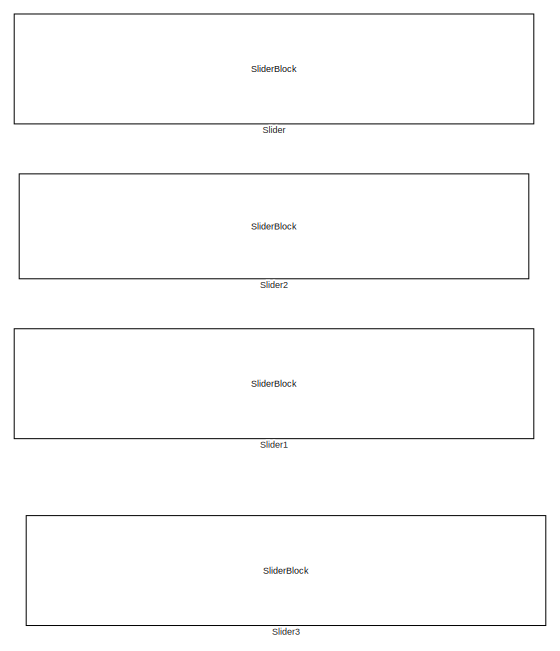
[diagram: root canvas - part 1/2, middle left region]
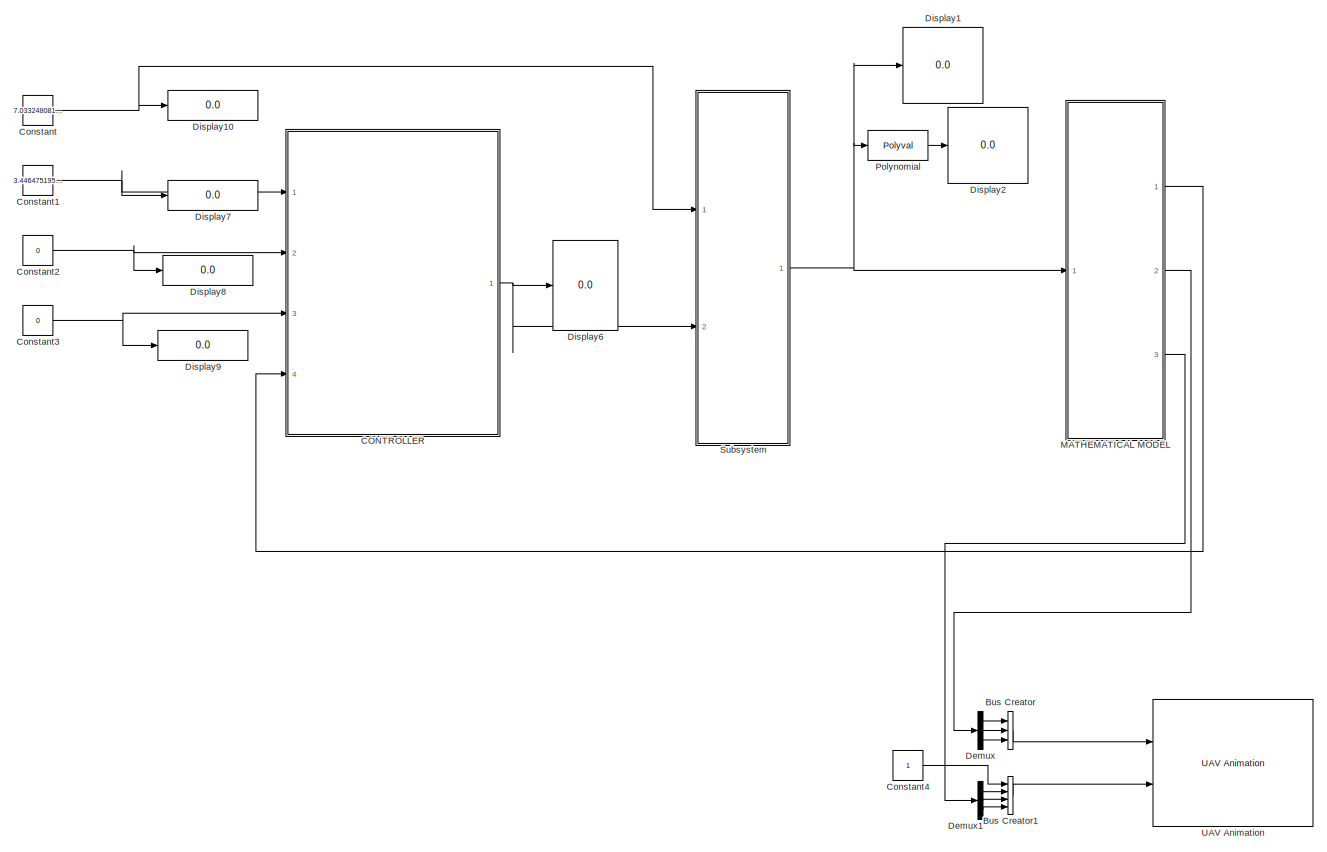
[diagram: root canvas - part 2/2, right side, full height]
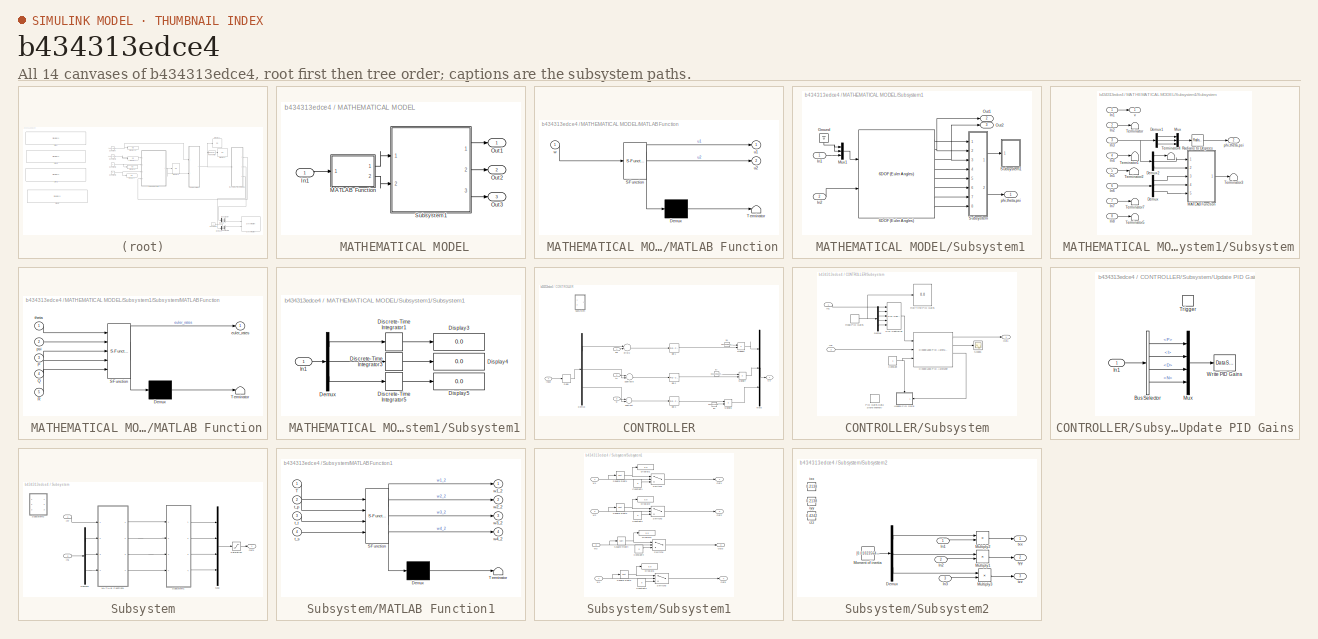
[diagram: thumbnail index - all 14 canvases of the model, root first then tree order]
MODEL slx_b434313edce4
KIND model
CONFIG AbsTol = auto
CONFIG EnableMultiTasking = off
CONFIG FixedStep = auto
CONFIG MaxStep = auto
CONFIG MinStep = auto
CONFIG RelTol = 1e-3
CONFIG SampleTimeConstraint = Unconstrained
CONFIG Solver = VariableStepAuto
CONFIG SolverName = VariableStepAuto
CONFIG StartTime = 0.0
CONFIG StopTime = inf
BLOCK [SubSystem]  MATHEMATICAL MODEL
  Ports = [1, 3]
  RequestExecContextInheritance = off
BLOCK [Inport]  MATHEMATICAL MODEL/In1
  IconDisplay = Port number
BLOCK [SubSystem]  MATHEMATICAL MODEL/MATLAB Function
  ErrorFcn = Stateflow.Translate.translate
  PermitHierarchicalResolution = ExplicitOnly
  Ports = [1, 2]
  RequestExecContextInheritance = off
  SFBlockType = MATLAB Function
  TreatAsAtomicUnit = on
BLOCK [Demux]  MATHEMATICAL MODEL/MATLAB Function/ Demux 
  Outputs = 1
  Ports = [1, 1]
BLOCK [S-Function]  MATHEMATICAL MODEL/MATLAB Function/ SFunction 
  EnableBusSupport = on
  FunctionName = sf_sfun
  PortCounts = [1 3]
  Ports = [1, 3]
  SFcnIsStateOwnerBlock = off
  SFunctionDeploymentMode = off
  Tag = Stateflow S-Function final_hover_final 3
BLOCK [Terminator]  MATHEMATICAL MODEL/MATLAB Function/ Terminator 
BLOCK [Outport]  MATHEMATICAL MODEL/MATLAB Function/u1
  IconDisplay = Port number
BLOCK [Outport]  MATHEMATICAL MODEL/MATLAB Function/u2
  IconDisplay = Port number
  Port = 2
BLOCK [Inport]  MATHEMATICAL MODEL/MATLAB Function/w
  IconDisplay = Port number
BLOCK [Outport]  MATHEMATICAL MODEL/Out1
  IconDisplay = Port number
BLOCK [Outport]  MATHEMATICAL MODEL/Out2
  IconDisplay = Port number
  Port = 2
BLOCK [Outport]  MATHEMATICAL MODEL/Out3
  IconDisplay = Port number
  Port = 3
BLOCK [SubSystem]  MATHEMATICAL MODEL/Subsystem1
  Ports = [2, 3]
  RequestExecContextInheritance = off
BLOCK [Reference]  MATHEMATICAL MODEL/Subsystem1/6DOF (Euler Angles)  REF=shared6dof/6DOF (Euler Angles)
  Ports = [2, 8]
  SourceBlock = shared6dof/6DOF (Euler Angles)
  SourceProductBaseCode = AE
  SourceProductName = Aerospace Blockset
  SourceType = 6DOF EoM (Body Axis)
BLOCK [Ground]  MATHEMATICAL MODEL/Subsystem1/Ground
BLOCK [Inport]  MATHEMATICAL MODEL/Subsystem1/In1
  IconDisplay = Port number
BLOCK [Inport]  MATHEMATICAL MODEL/Subsystem1/In2
  IconDisplay = Port number
  Port = 2
BLOCK [Mux]  MATHEMATICAL MODEL/Subsystem1/Mux1
  DisplayOption = bar
  Inputs = 3
  Ports = [3, 1]
BLOCK [Outport]  MATHEMATICAL MODEL/Subsystem1/Out1
  IconDisplay = Port number
  Port = 2
BLOCK [Outport]  MATHEMATICAL MODEL/Subsystem1/Out2
  IconDisplay = Port number
  Port = 3
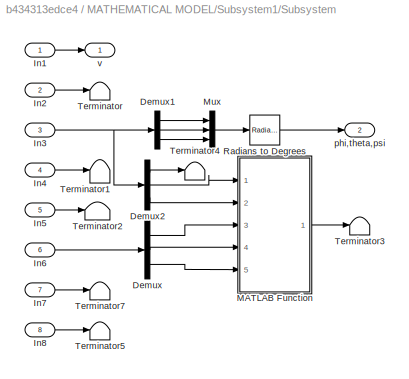
BLOCK [SubSystem]  MATHEMATICAL MODEL/Subsystem1/Subsystem
  Ports = [8, 2]
  RequestExecContextInheritance = off
BLOCK [Demux]  MATHEMATICAL MODEL/Subsystem1/Subsystem/Demux
  DisplayOption = bar
  Outputs = 3
  Ports = [1, 3]
BLOCK [Demux]  MATHEMATICAL MODEL/Subsystem1/Subsystem/Demux1
  DisplayOption = bar
  Outputs = 3
  Ports = [1, 3]
BLOCK [Demux]  MATHEMATICAL MODEL/Subsystem1/Subsystem/Demux2
  DisplayOption = bar
  Outputs = 3
  Ports = [1, 3]
BLOCK [Inport]  MATHEMATICAL MODEL/Subsystem1/Subsystem/In1
  IconDisplay = Port number
BLOCK [Inport]  MATHEMATICAL MODEL/Subsystem1/Subsystem/In2
  IconDisplay = Port number
  Port = 2
BLOCK [Inport]  MATHEMATICAL MODEL/Subsystem1/Subsystem/In3
  IconDisplay = Port number
  Port = 3
BLOCK [Inport]  MATHEMATICAL MODEL/Subsystem1/Subsystem/In4
  IconDisplay = Port number
  Port = 4
BLOCK [Inport]  MATHEMATICAL MODEL/Subsystem1/Subsystem/In5
  IconDisplay = Port number
  Port = 5
BLOCK [Inport]  MATHEMATICAL MODEL/Subsystem1/Subsystem/In6
  IconDisplay = Port number
  Port = 6
BLOCK [Inport]  MATHEMATICAL MODEL/Subsystem1/Subsystem/In7
  IconDisplay = Port number
  Port = 7
BLOCK [Inport]  MATHEMATICAL MODEL/Subsystem1/Subsystem/In8
  IconDisplay = Port number
  Port = 8
BLOCK [SubSystem]  MATHEMATICAL MODEL/Subsystem1/Subsystem/MATLAB Function
  ErrorFcn = Stateflow.Translate.translate
  PermitHierarchicalResolution = ExplicitOnly
  Ports = [5, 1]
  RequestExecContextInheritance = off
  SFBlockType = MATLAB Function
  TreatAsAtomicUnit = on
BLOCK [Demux]  MATHEMATICAL MODEL/Subsystem1/Subsystem/MATLAB Function/ Demux 
  Outputs = 1
  Ports = [1, 1]
BLOCK [S-Function]  MATHEMATICAL MODEL/Subsystem1/Subsystem/MATLAB Function/ SFunction 
  EnableBusSupport = on
  FunctionName = sf_sfun
  PortCounts = [5 2]
  Ports = [5, 2]
  SFcnIsStateOwnerBlock = off
  SFunctionDeploymentMode = off
  Tag = Stateflow S-Function final_hover_final 1
BLOCK [Terminator]  MATHEMATICAL MODEL/Subsystem1/Subsystem/MATLAB Function/ Terminator 
BLOCK [Inport]  MATHEMATICAL MODEL/Subsystem1/Subsystem/MATLAB Function/P
  IconDisplay = Port number
  Port = 3
BLOCK [Inport]  MATHEMATICAL MODEL/Subsystem1/Subsystem/MATLAB Function/Q
  IconDisplay = Port number
  Port = 4
BLOCK [Inport]  MATHEMATICAL MODEL/Subsystem1/Subsystem/MATLAB Function/R
  IconDisplay = Port number
  Port = 5
BLOCK [Outport]  MATHEMATICAL MODEL/Subsystem1/Subsystem/MATLAB Function/euler_rates
  IconDisplay = Port number
BLOCK [Inport]  MATHEMATICAL MODEL/Subsystem1/Subsystem/MATLAB Function/psi
  IconDisplay = Port number
  Port = 2
BLOCK [Inport]  MATHEMATICAL MODEL/Subsystem1/Subsystem/MATLAB Function/theta
  IconDisplay = Port number
BLOCK [Mux]  MATHEMATICAL MODEL/Subsystem1/Subsystem/Mux
  DisplayOption = bar
  Inputs = 3
  Ports = [3, 1]
BLOCK [Reference]  MATHEMATICAL MODEL/Subsystem1/Subsystem/Radians to Degrees  REF=simulink_extras/Transformations/Radians
to Degrees
  Ports = [1, 1]
  SourceBlock = simulink_extras/Transformations/Radians\nto Degrees
  SourceProductBaseCode = SL
  SourceProductName = Simulink
  SourceType = RadiansToDegrees
BLOCK [Terminator]  MATHEMATICAL MODEL/Subsystem1/Subsystem/Terminator
BLOCK [Terminator]  MATHEMATICAL MODEL/Subsystem1/Subsystem/Terminator1
BLOCK [Terminator]  MATHEMATICAL MODEL/Subsystem1/Subsystem/Terminator2
BLOCK [Terminator]  MATHEMATICAL MODEL/Subsystem1/Subsystem/Terminator3
BLOCK [Terminator]  MATHEMATICAL MODEL/Subsystem1/Subsystem/Terminator4
BLOCK [Terminator]  MATHEMATICAL MODEL/Subsystem1/Subsystem/Terminator5
BLOCK [Terminator]  MATHEMATICAL MODEL/Subsystem1/Subsystem/Terminator7
BLOCK [Outport]  MATHEMATICAL MODEL/Subsystem1/Subsystem/phi,theta,psi
  IconDisplay = Port number
  Port = 2
BLOCK [Outport]  MATHEMATICAL MODEL/Subsystem1/Subsystem/v 
  IconDisplay = Port number
BLOCK [SubSystem]  MATHEMATICAL MODEL/Subsystem1/Subsystem1
  Ports = [1]
  RequestExecContextInheritance = off
BLOCK [Demux]  MATHEMATICAL MODEL/Subsystem1/Subsystem1/Demux
  DisplayOption = bar
  Outputs = 3
  Ports = [1, 3]
BLOCK [DiscreteIntegrator]  MATHEMATICAL MODEL/Subsystem1/Subsystem1/Discrete-Time Integrator1
  ICPrevOutput = DiscIntNeverNeededParam
  ICPrevScaledInput = DiscIntNeverNeededParam
  InitialConditionSetting = Auto
  Ports = [1, 1]
  SampleTime = -1
BLOCK [DiscreteIntegrator]  MATHEMATICAL MODEL/Subsystem1/Subsystem1/Discrete-Time Integrator3
  ICPrevOutput = DiscIntNeverNeededParam
  ICPrevScaledInput = DiscIntNeverNeededParam
  InitialConditionSetting = Auto
  Ports = [1, 1]
  SampleTime = -1
BLOCK [DiscreteIntegrator]  MATHEMATICAL MODEL/Subsystem1/Subsystem1/Discrete-Time Integrator5
  ICPrevOutput = DiscIntNeverNeededParam
  ICPrevScaledInput = DiscIntNeverNeededParam
  InitialConditionSetting = Auto
  Ports = [1, 1]
  SampleTime = -1
BLOCK [Display]  MATHEMATICAL MODEL/Subsystem1/Subsystem1/Display3
  Decimation = 1
  Ports = [1]
BLOCK [Display]  MATHEMATICAL MODEL/Subsystem1/Subsystem1/Display4
  Decimation = 1
  Ports = [1]
BLOCK [Display]  MATHEMATICAL MODEL/Subsystem1/Subsystem1/Display5
  Decimation = 1
  Ports = [1]
BLOCK [Inport]  MATHEMATICAL MODEL/Subsystem1/Subsystem1/In1
  IconDisplay = Port number
BLOCK [Outport]  MATHEMATICAL MODEL/Subsystem1/phi,theta,psi
  IconDisplay = Port number
BLOCK [BusCreator] Bus Creator
  DisplayOption = bar
  InheritFromInputs = on
  Inputs = 3
  Ports = [3, 1]
BLOCK [BusCreator] Bus Creator1
  DisplayOption = bar
  InheritFromInputs = on
  Inputs = 4
  Ports = [4, 1]
BLOCK [SubSystem] CONTROLLER
  Ports = [4, 1]
  RequestExecContextInheritance = off
BLOCK [Delay] CONTROLLER/Delay
  DelayLength = 1
  InputPortMap = u0
  Ports = [1, 1]
  SampleTime = 0.04
BLOCK [Demux] CONTROLLER/Demux
  DisplayOption = bar
  Outputs = 3
  Ports = [1, 3]
BLOCK [Inport] CONTROLLER/Input
  IconDisplay = Port number
  Port = 4
BLOCK [Product] CONTROLLER/Multiply6
  InputSameDT = off
  OutDataTypeStr = double
  Ports = [2, 1]
  RndMeth = Floor
  SaturateOnIntegerOverflow = off
BLOCK [Product] CONTROLLER/Multiply7
  InputSameDT = off
  OutDataTypeStr = double
  Ports = [2, 1]
  RndMeth = Floor
  SaturateOnIntegerOverflow = off
BLOCK [Product] CONTROLLER/Multiply8
  InputSameDT = off
  OutDataTypeStr = double
  Ports = [2, 1]
  RndMeth = Floor
  SaturateOnIntegerOverflow = off
BLOCK [Mux] CONTROLLER/Mux3
  DisplayOption = bar
  Inputs = 3
  Ports = [3, 1]
BLOCK [SubSystem] CONTROLLER/Subsystem
  Commented = on
  Ports = [2, 1]
  RequestExecContextInheritance = off
BLOCK [Reference] CONTROLLER/Subsystem/Closed-Loop PID Autotuner  REF=slctrlblks/Closed-Loop PID Autotuner
  Ports = [3, 4]
  SourceBlock = slctrlblks/Closed-Loop PID Autotuner
  SourceProductBaseCode = SD
  SourceProductName = Simulink Control Design
  SourceType = ClosedLoopOnlinePIDTuner
BLOCK [Constant] CONTROLLER/Subsystem/Constant
BLOCK [Demux] CONTROLLER/Subsystem/Demux
  DisplayOption = bar
  Ports = [1, 4]
BLOCK [Inport] CONTROLLER/Subsystem/In1
  IconDisplay = Port number
BLOCK [Inport] CONTROLLER/Subsystem/In2
  IconDisplay = Port number
  Port = 2
BLOCK [Outport] CONTROLLER/Subsystem/Out1
  IconDisplay = Port number
BLOCK [Reference] CONTROLLER/Subsystem/PID Controller  REF=simulink/Continuous/PID Controller
  Ports = [5, 1]
  SourceBlock = simulink/Continuous/PID Controller
  SourceProductBaseCode = SL
  SourceProductName = Simulink
  SourceType = PID 1dof
BLOCK [DataStoreMemory] CONTROLLER/Subsystem/PID Gains Data Store Memory
  DataStoreName = Gains
  InitialValue = [0.02 160 5e-5 20000]
  ShowAdditionalParam = off
BLOCK [DataStoreRead] CONTROLLER/Subsystem/Read PID Gains
  DataStoreName = Gains
  Ports = [0, 1]
BLOCK [Display] CONTROLLER/Subsystem/Run-Time PID Gains
  Decimation = 1
  Ports = [1]
BLOCK [Scope] CONTROLLER/Subsystem/Scope1
  Floating = off
  NumInputPorts = 1
  Ports = [1]
  ScopeSpecificationString = Simulink.scopes.TimeScopeBlockCfg('CurrentConfiguration', extmgr.ConfigurationSet(extmgr.Configuration('Core','General UI',true),extmgr.Configuration('Core','Source UI',true),extmgr.Configuration('Sources','WiredSimulink',true,'DataLoggingVariableName','ScopeData1'),extmgr.Configuration('Visuals','Time Domain',true,'SerializedDisplays',{struct('MinYLimReal','-12.5','MaxYLimReal','112.5','YLabelRea...<+1430ch>
BLOCK [SubSystem] CONTROLLER/Subsystem/Update PID Gains
  Ports = [1, 0, 0, 1]
  RequestExecContextInheritance = off
BLOCK [BusSelector] CONTROLLER/Subsystem/Update PID Gains/Bus Selector
  OutputAsBus = off
  OutputSignals = P,I,D,N
  Ports = [1, 4]
BLOCK [Inport] CONTROLLER/Subsystem/Update PID Gains/In1
  IconDisplay = Port number
BLOCK [Mux] CONTROLLER/Subsystem/Update PID Gains/Mux
  DisplayOption = bar
  Ports = [4, 1]
BLOCK [TriggerPort] CONTROLLER/Subsystem/Update PID Gains/Trigger
  PortDimensions = 1
  Ports = []
  StatesWhenEnabling = held
  TriggerType = falling
  VariantControl = Variant
BLOCK [DataStoreWrite] CONTROLLER/Subsystem/Update PID Gains/Write PID Gains
  DataStoreName = Gains
  Ports = [1]
BLOCK [Sum] CONTROLLER/Subtract
  InputSameDT = off
  Inputs = +-
  OutDataTypeStr = Inherit: Inherit via internal rule
  Ports = [2, 1]
  SaturateOnIntegerOverflow = off
BLOCK [Sum] CONTROLLER/Subtract5
  InputSameDT = off
  Inputs = +-
  OutDataTypeStr = Inherit: Inherit via internal rule
  Ports = [2, 1]
  SaturateOnIntegerOverflow = off
BLOCK [Outport] CONTROLLER/U2
  IconDisplay = Port number
BLOCK [Sum] CONTROLLER/error2
  InputSameDT = off
  Inputs = -+
  OutDataTypeStr = Inherit: Inherit via internal rule
  Ports = [2, 1]
  SaturateOnIntegerOverflow = off
BLOCK [Constant] CONTROLLER/ixx
  Value = 0.01023564759
BLOCK [Constant] CONTROLLER/iyy
  Value = 0.01023564759
BLOCK [Constant] CONTROLLER/izz
  Value = 0.02047129518
BLOCK [Inport] CONTROLLER/phi
  IconDisplay = Port number
BLOCK [Reference] CONTROLLER/pid-1  REF=simulink/Continuous/PID Controller
  Ports = [1, 1]
  SourceBlock = simulink/Continuous/PID Controller
  SourceProductBaseCode = SL
  SourceProductName = Simulink
  SourceType = PID 1dof
BLOCK [Reference] CONTROLLER/pid-2  REF=simulink/Continuous/PID Controller
  Ports = [1, 1]
  SourceBlock = simulink/Continuous/PID Controller
  SourceProductBaseCode = SL
  SourceProductName = Simulink
  SourceType = PID 1dof
BLOCK [Reference] CONTROLLER/pid-3  REF=simulink/Continuous/PID Controller
  Ports = [1, 1]
  SourceBlock = simulink/Continuous/PID Controller
  SourceProductBaseCode = SL
  SourceProductName = Simulink
  SourceType = PID 1dof
BLOCK [Inport] CONTROLLER/si
  IconDisplay = Port number
  Port = 3
BLOCK [Inport] CONTROLLER/th
  IconDisplay = Port number
  Port = 2
BLOCK [Constant] Constant
  Value = 7.033248081841432
BLOCK [Constant] Constant1
  Value = 3.446475195822451
BLOCK [Constant] Constant2
  Value = 0
BLOCK [Constant] Constant3
  Value = 0
BLOCK [Constant] Constant4
BLOCK [Demux] Demux
  DisplayOption = bar
  Outputs = 3
  Ports = [1, 3]
BLOCK [Demux] Demux1
  DisplayOption = bar
  Outputs = 3
  Ports = [1, 3]
BLOCK [Display] Display1
  Decimation = 1
  Ports = [1]
BLOCK [Display] Display10
  Decimation = 1
  Ports = [1]
BLOCK [Display] Display2
  Decimation = 1
  Ports = [1]
BLOCK [Display] Display6
  Decimation = 1
  Ports = [1]
BLOCK [Display] Display7
  Decimation = 1
  Ports = [1]
BLOCK [Display] Display8
  Decimation = 1
  Ports = [1]
BLOCK [Display] Display9
  Decimation = 1
  Ports = [1]
BLOCK [Polyval] Polynomial
  Coefs = [1.126e-05 0.05526 1000]
BLOCK [SliderBlock] Slider
  ScaleMax = 20
BLOCK [SliderBlock] Slider1
  ScaleMax = 30
  ScaleMin = -30
BLOCK [SliderBlock] Slider2
  ScaleMax = 30
  ScaleMin = -30
BLOCK [SliderBlock] Slider3
  ScaleMax = 30
  ScaleMin = -30
BLOCK [SubSystem] Subsystem
  Ports = [2, 1]
  RequestExecContextInheritance = off
BLOCK [Demux] Subsystem/Demux1
  DisplayOption = bar
  Outputs = 3
  Ports = [1, 3]
BLOCK [Inport] Subsystem/In1
  IconDisplay = Port number
  Port = 2
BLOCK [Inport] Subsystem/In7
  IconDisplay = Port number
BLOCK [SubSystem] Subsystem/MATLAB Function1
  ErrorFcn = Stateflow.Translate.translate
  PermitHierarchicalResolution = ExplicitOnly
  Ports = [4, 4]
  RequestExecContextInheritance = off
  SFBlockType = MATLAB Function
  TreatAsAtomicUnit = on
BLOCK [Demux] Subsystem/MATLAB Function1/ Demux 
  Outputs = 1
  Ports = [1, 1]
BLOCK [S-Function] Subsystem/MATLAB Function1/ SFunction 
  EnableBusSupport = on
  FunctionName = sf_sfun
  PortCounts = [4 5]
  Ports = [4, 5]
  SFcnIsStateOwnerBlock = off
  SFunctionDeploymentMode = off
  Tag = Stateflow S-Function final_hover_final 2
BLOCK [Terminator] Subsystem/MATLAB Function1/ Terminator 
BLOCK [Inport] Subsystem/MATLAB Function1/T
  IconDisplay = Port number
BLOCK [Inport] Subsystem/MATLAB Function1/t_p
  IconDisplay = Port number
  Port = 2
BLOCK [Inport] Subsystem/MATLAB Function1/t_s
  IconDisplay = Port number
  Port = 4
BLOCK [Inport] Subsystem/MATLAB Function1/t_t
  IconDisplay = Port number
  Port = 3
BLOCK [Outport] Subsystem/MATLAB Function1/w1_2
  IconDisplay = Port number
BLOCK [Outport] Subsystem/MATLAB Function1/w2_2
  IconDisplay = Port number
  Port = 2
BLOCK [Outport] Subsystem/MATLAB Function1/w3_2
  IconDisplay = Port number
  Port = 3
BLOCK [Outport] Subsystem/MATLAB Function1/w4_2
  IconDisplay = Port number
  Port = 4
BLOCK [Mux] Subsystem/Mux
  DisplayOption = bar
  Ports = [4, 1]
BLOCK [Outport] Subsystem/Out1
  IconDisplay = Port number
BLOCK [Saturate] Subsystem/Saturation
  InputPortMap = u0
  LowerLimit = 0
  Ports = [1, 1]
  UpperLimit = 7300
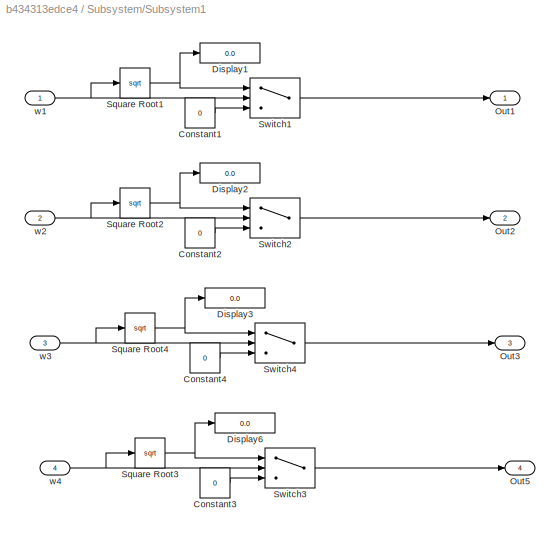
BLOCK [SubSystem] Subsystem/Subsystem1
  Ports = [4, 4]
  RequestExecContextInheritance = off
BLOCK [Constant] Subsystem/Subsystem1/Constant1
  Value = 0
BLOCK [Constant] Subsystem/Subsystem1/Constant2
  Value = 0
BLOCK [Constant] Subsystem/Subsystem1/Constant3
  Value = 0
BLOCK [Constant] Subsystem/Subsystem1/Constant4
  Value = 0
BLOCK [Display] Subsystem/Subsystem1/Display1
  Decimation = 1
  Ports = [1]
BLOCK [Display] Subsystem/Subsystem1/Display2
  Decimation = 1
  Ports = [1]
BLOCK [Display] Subsystem/Subsystem1/Display3
  Decimation = 1
  Ports = [1]
BLOCK [Display] Subsystem/Subsystem1/Display6
  Decimation = 1
  Ports = [1]
BLOCK [Outport] Subsystem/Subsystem1/Out1
  IconDisplay = Port number
BLOCK [Outport] Subsystem/Subsystem1/Out2
  IconDisplay = Port number
  Port = 2
BLOCK [Outport] Subsystem/Subsystem1/Out3
  IconDisplay = Port number
  Port = 3
BLOCK [Outport] Subsystem/Subsystem1/Out5
  IconDisplay = Port number
  Port = 4
BLOCK [Sqrt] Subsystem/Subsystem1/Square Root1
BLOCK [Sqrt] Subsystem/Subsystem1/Square Root2
BLOCK [Sqrt] Subsystem/Subsystem1/Square Root3
BLOCK [Sqrt] Subsystem/Subsystem1/Square Root4
BLOCK [Switch] Subsystem/Subsystem1/Switch1
  Criteria = u2 > Threshold
  InputSameDT = off
  SaturateOnIntegerOverflow = off
BLOCK [Switch] Subsystem/Subsystem1/Switch2
  Criteria = u2 > Threshold
  InputSameDT = off
  SaturateOnIntegerOverflow = off
BLOCK [Switch] Subsystem/Subsystem1/Switch3
  Criteria = u2 > Threshold
  InputSameDT = off
  SaturateOnIntegerOverflow = off
BLOCK [Switch] Subsystem/Subsystem1/Switch4
  Criteria = u2 > Threshold
  InputSameDT = off
  SaturateOnIntegerOverflow = off
BLOCK [Inport] Subsystem/Subsystem1/w1
  IconDisplay = Port number
BLOCK [Inport] Subsystem/Subsystem1/w2
  IconDisplay = Port number
  Port = 2
BLOCK [Inport] Subsystem/Subsystem1/w3
  IconDisplay = Port number
  Port = 3
BLOCK [Inport] Subsystem/Subsystem1/w4
  IconDisplay = Port number
  Port = 4
BLOCK [SubSystem] Subsystem/Subsystem2
  Commented = on
  Ports = [3, 3]
  RequestExecContextInheritance = off
BLOCK [Demux] Subsystem/Subsystem2/Demux
  DisplayOption = bar
  Outputs = 3
  Ports = [1, 3]
BLOCK [Inport] Subsystem/Subsystem2/In1
  IconDisplay = Port number
BLOCK [Inport] Subsystem/Subsystem2/In2
  IconDisplay = Port number
  Port = 2
BLOCK [Inport] Subsystem/Subsystem2/In3
  IconDisplay = Port number
  Port = 3
BLOCK [Constant] Subsystem/Subsystem2/Moment of inertia
  Value = [0.01023564759 ;0.01023564759 ;0.02047129518]
BLOCK [Product] Subsystem/Subsystem2/Multiply1
  InputSameDT = off
  OutDataTypeStr = double
  Ports = [2, 1]
  RndMeth = Floor
  SaturateOnIntegerOverflow = off
BLOCK [Product] Subsystem/Subsystem2/Multiply2
  InputSameDT = off
  OutDataTypeStr = double
  Ports = [2, 1]
  RndMeth = Floor
  SaturateOnIntegerOverflow = off
BLOCK [Product] Subsystem/Subsystem2/Multiply3
  InputSameDT = off
  OutDataTypeStr = double
  Ports = [2, 1]
  RndMeth = Floor
  SaturateOnIntegerOverflow = off
BLOCK [Constant] Subsystem/Subsystem2/ixx
  Commented = on
  Value = 0.2138
BLOCK [Constant] Subsystem/Subsystem2/iyy
  Commented = on
  Value = 0.2138
BLOCK [Constant] Subsystem/Subsystem2/izz
  Commented = on
  Value = 0.4242
BLOCK [Outport] Subsystem/Subsystem2/txx
  IconDisplay = Port number
BLOCK [Outport] Subsystem/Subsystem2/tyy
  IconDisplay = Port number
  Port = 2
BLOCK [Outport] Subsystem/Subsystem2/tzz
  IconDisplay = Port number
  Port = 3
BLOCK [Reference] UAV Animation  REF=robotuavlib/UAV Animation
  Ports = [2]
  SourceBlock = robotuavlib/UAV Animation
  SourceProductBaseCode = ROBOTICS_UAV_LIB
  SourceProductName = Robotics System Toolbox UAV Library
  SourceType = robotics.sluav.internal.system.UAVAnimation
LINE  MATHEMATICAL MODEL/In1:1 ->  MATHEMATICAL MODEL/MATLAB Function:1
LINE  MATHEMATICAL MODEL/MATLAB Function:1 ->  MATHEMATICAL MODEL/Subsystem1:1
LINE  MATHEMATICAL MODEL/MATLAB Function:2 ->  MATHEMATICAL MODEL/Subsystem1:2
LINE  MATHEMATICAL MODEL/Subsystem1/6DOF (Euler Angles):1 ->  MATHEMATICAL MODEL/Subsystem1/Subsystem:1
NET  MATHEMATICAL MODEL/Subsystem1/6DOF (Euler Angles):2 ->  MATHEMATICAL MODEL/Subsystem1/Out1:1,  MATHEMATICAL MODEL/Subsystem1/Subsystem:2
NET  MATHEMATICAL MODEL/Subsystem1/6DOF (Euler Angles):3 ->  MATHEMATICAL MODEL/Subsystem1/Out2:1,  MATHEMATICAL MODEL/Subsystem1/Subsystem:3
LINE  MATHEMATICAL MODEL/Subsystem1/6DOF (Euler Angles):4 ->  MATHEMATICAL MODEL/Subsystem1/Subsystem:4
LINE  MATHEMATICAL MODEL/Subsystem1/6DOF (Euler Angles):5 ->  MATHEMATICAL MODEL/Subsystem1/Subsystem:5
LINE  MATHEMATICAL MODEL/Subsystem1/6DOF (Euler Angles):6 ->  MATHEMATICAL MODEL/Subsystem1/Subsystem:6
LINE  MATHEMATICAL MODEL/Subsystem1/6DOF (Euler Angles):7 ->  MATHEMATICAL MODEL/Subsystem1/Subsystem:7
LINE  MATHEMATICAL MODEL/Subsystem1/6DOF (Euler Angles):8 ->  MATHEMATICAL MODEL/Subsystem1/Subsystem:8
NET  MATHEMATICAL MODEL/Subsystem1/Ground:1 ->  MATHEMATICAL MODEL/Subsystem1/Mux1:1,  MATHEMATICAL MODEL/Subsystem1/Mux1:2
LINE  MATHEMATICAL MODEL/Subsystem1/In1:1 ->  MATHEMATICAL MODEL/Subsystem1/Mux1:3
LINE  MATHEMATICAL MODEL/Subsystem1/In2:1 ->  MATHEMATICAL MODEL/Subsystem1/6DOF (Euler Angles):2
LINE  MATHEMATICAL MODEL/Subsystem1/Mux1:1 ->  MATHEMATICAL MODEL/Subsystem1/6DOF (Euler Angles):1
LINE  MATHEMATICAL MODEL/Subsystem1/Subsystem/Demux1:1 ->  MATHEMATICAL MODEL/Subsystem1/Subsystem/Mux:1
LINE  MATHEMATICAL MODEL/Subsystem1/Subsystem/Demux1:2 ->  MATHEMATICAL MODEL/Subsystem1/Subsystem/Mux:2
LINE  MATHEMATICAL MODEL/Subsystem1/Subsystem/Demux1:3 ->  MATHEMATICAL MODEL/Subsystem1/Subsystem/Mux:3
LINE  MATHEMATICAL MODEL/Subsystem1/Subsystem/Demux2:1 ->  MATHEMATICAL MODEL/Subsystem1/Subsystem/Terminator4:1
LINE  MATHEMATICAL MODEL/Subsystem1/Subsystem/Demux2:2 ->  MATHEMATICAL MODEL/Subsystem1/Subsystem/MATLAB Function:1
LINE  MATHEMATICAL MODEL/Subsystem1/Subsystem/Demux2:3 ->  MATHEMATICAL MODEL/Subsystem1/Subsystem/MATLAB Function:2
LINE  MATHEMATICAL MODEL/Subsystem1/Subsystem/Demux:1 ->  MATHEMATICAL MODEL/Subsystem1/Subsystem/MATLAB Function:3
LINE  MATHEMATICAL MODEL/Subsystem1/Subsystem/Demux:2 ->  MATHEMATICAL MODEL/Subsystem1/Subsystem/MATLAB Function:4
LINE  MATHEMATICAL MODEL/Subsystem1/Subsystem/Demux:3 ->  MATHEMATICAL MODEL/Subsystem1/Subsystem/MATLAB Function:5
LINE  MATHEMATICAL MODEL/Subsystem1/Subsystem/In1:1 ->  MATHEMATICAL MODEL/Subsystem1/Subsystem/v :1
LINE  MATHEMATICAL MODEL/Subsystem1/Subsystem/In2:1 ->  MATHEMATICAL MODEL/Subsystem1/Subsystem/Terminator:1
NET  MATHEMATICAL MODEL/Subsystem1/Subsystem/In3:1 ->  MATHEMATICAL MODEL/Subsystem1/Subsystem/Demux1:1,  MATHEMATICAL MODEL/Subsystem1/Subsystem/Demux2:1
LINE  MATHEMATICAL MODEL/Subsystem1/Subsystem/In4:1 ->  MATHEMATICAL MODEL/Subsystem1/Subsystem/Terminator1:1
LINE  MATHEMATICAL MODEL/Subsystem1/Subsystem/In5:1 ->  MATHEMATICAL MODEL/Subsystem1/Subsystem/Terminator2:1
LINE  MATHEMATICAL MODEL/Subsystem1/Subsystem/In6:1 ->  MATHEMATICAL MODEL/Subsystem1/Subsystem/Demux:1
LINE  MATHEMATICAL MODEL/Subsystem1/Subsystem/In7:1 ->  MATHEMATICAL MODEL/Subsystem1/Subsystem/Terminator7:1
LINE  MATHEMATICAL MODEL/Subsystem1/Subsystem/In8:1 ->  MATHEMATICAL MODEL/Subsystem1/Subsystem/Terminator5:1
LINE  MATHEMATICAL MODEL/Subsystem1/Subsystem/MATLAB Function:1 ->  MATHEMATICAL MODEL/Subsystem1/Subsystem/Terminator3:1
LINE  MATHEMATICAL MODEL/Subsystem1/Subsystem/Mux:1 ->  MATHEMATICAL MODEL/Subsystem1/Subsystem/Radians to Degrees:1
LINE  MATHEMATICAL MODEL/Subsystem1/Subsystem/Radians to Degrees:1 ->  MATHEMATICAL MODEL/Subsystem1/Subsystem/phi,theta,psi:1
LINE  MATHEMATICAL MODEL/Subsystem1/Subsystem1/Demux:1 ->  MATHEMATICAL MODEL/Subsystem1/Subsystem1/Discrete-Time Integrator1:1
LINE  MATHEMATICAL MODEL/Subsystem1/Subsystem1/Demux:2 ->  MATHEMATICAL MODEL/Subsystem1/Subsystem1/Discrete-Time Integrator3:1
LINE  MATHEMATICAL MODEL/Subsystem1/Subsystem1/Demux:3 ->  MATHEMATICAL MODEL/Subsystem1/Subsystem1/Discrete-Time Integrator5:1
LINE  MATHEMATICAL MODEL/Subsystem1/Subsystem1/Discrete-Time Integrator1:1 ->  MATHEMATICAL MODEL/Subsystem1/Subsystem1/Display3:1
LINE  MATHEMATICAL MODEL/Subsystem1/Subsystem1/Discrete-Time Integrator3:1 ->  MATHEMATICAL MODEL/Subsystem1/Subsystem1/Display4:1
LINE  MATHEMATICAL MODEL/Subsystem1/Subsystem1/Discrete-Time Integrator5:1 ->  MATHEMATICAL MODEL/Subsystem1/Subsystem1/Display5:1
LINE  MATHEMATICAL MODEL/Subsystem1/Subsystem1/In1:1 ->  MATHEMATICAL MODEL/Subsystem1/Subsystem1/Demux:1
LINE  MATHEMATICAL MODEL/Subsystem1/Subsystem:1 ->  MATHEMATICAL MODEL/Subsystem1/Subsystem1:1
LINE  MATHEMATICAL MODEL/Subsystem1/Subsystem:2 ->  MATHEMATICAL MODEL/Subsystem1/phi,theta,psi:1
LINE  MATHEMATICAL MODEL/Subsystem1:1 ->  MATHEMATICAL MODEL/Out1:1
LINE  MATHEMATICAL MODEL/Subsystem1:2 ->  MATHEMATICAL MODEL/Out2:1
LINE  MATHEMATICAL MODEL/Subsystem1:3 ->  MATHEMATICAL MODEL/Out3:1
LINE  MATHEMATICAL MODEL:1 -> CONTROLLER:4
LINE  MATHEMATICAL MODEL:2 -> Demux:1
LINE  MATHEMATICAL MODEL:3 -> Demux1:1
LINE Bus Creator1:1 -> UAV Animation:2
LINE Bus Creator:1 -> UAV Animation:1
LINE CONTROLLER/Delay:1 -> CONTROLLER/Demux:1
LINE CONTROLLER/Demux:1 -> CONTROLLER/error2:1
LINE CONTROLLER/Demux:2 -> CONTROLLER/Subtract5:2
LINE CONTROLLER/Demux:3 -> CONTROLLER/Subtract:2
LINE CONTROLLER/Input:1 -> CONTROLLER/Delay:1
LINE CONTROLLER/Multiply6:1 -> CONTROLLER/Mux3:1
LINE CONTROLLER/Multiply7:1 -> CONTROLLER/Mux3:2
LINE CONTROLLER/Multiply8:1 -> CONTROLLER/Mux3:3
LINE CONTROLLER/Mux3:1 -> CONTROLLER/U2:1
LINE CONTROLLER/Subsystem/Closed-Loop PID Autotuner:1 -> CONTROLLER/Subsystem/Out1:1
LINE CONTROLLER/Subsystem/Closed-Loop PID Autotuner:2 -> CONTROLLER/Subsystem/Scope1:1
LINE CONTROLLER/Subsystem/Closed-Loop PID Autotuner:3 -> CONTROLLER/Subsystem/Update PID Gains:1
NET CONTROLLER/Subsystem/Constant:1 -> CONTROLLER/Subsystem/Closed-Loop PID Autotuner:3, CONTROLLER/Subsystem/Update PID Gains:trigger
LINE CONTROLLER/Subsystem/Demux:1 -> CONTROLLER/Subsystem/PID Controller:2
LINE CONTROLLER/Subsystem/Demux:2 -> CONTROLLER/Subsystem/PID Controller:3
LINE CONTROLLER/Subsystem/Demux:3 -> CONTROLLER/Subsystem/PID Controller:4
LINE CONTROLLER/Subsystem/Demux:4 -> CONTROLLER/Subsystem/PID Controller:5
LINE CONTROLLER/Subsystem/In1:1 -> CONTROLLER/Subsystem/PID Controller:1
LINE CONTROLLER/Subsystem/In2:1 -> CONTROLLER/Subsystem/Closed-Loop PID Autotuner:2
LINE CONTROLLER/Subsystem/PID Controller:1 -> CONTROLLER/Subsystem/Closed-Loop PID Autotuner:1
NET CONTROLLER/Subsystem/Read PID Gains:1 -> CONTROLLER/Subsystem/Demux:1, CONTROLLER/Subsystem/Run-Time PID Gains:1
LINE CONTROLLER/Subsystem/Update PID Gains/Bus Selector:1 -> CONTROLLER/Subsystem/Update PID Gains/Mux:1
LINE CONTROLLER/Subsystem/Update PID Gains/Bus Selector:2 -> CONTROLLER/Subsystem/Update PID Gains/Mux:2
LINE CONTROLLER/Subsystem/Update PID Gains/Bus Selector:3 -> CONTROLLER/Subsystem/Update PID Gains/Mux:3
LINE CONTROLLER/Subsystem/Update PID Gains/Bus Selector:4 -> CONTROLLER/Subsystem/Update PID Gains/Mux:4
LINE CONTROLLER/Subsystem/Update PID Gains/In1:1 -> CONTROLLER/Subsystem/Update PID Gains/Bus Selector:1
LINE CONTROLLER/Subsystem/Update PID Gains/Mux:1 -> CONTROLLER/Subsystem/Update PID Gains/Write PID Gains:1
LINE CONTROLLER/Subtract5:1 -> CONTROLLER/pid-2:1
LINE CONTROLLER/Subtract:1 -> CONTROLLER/pid-3:1
LINE CONTROLLER/error2:1 -> CONTROLLER/pid-1:1
LINE CONTROLLER/ixx:1 -> CONTROLLER/Multiply6:1
LINE CONTROLLER/iyy:1 -> CONTROLLER/Multiply7:1
LINE CONTROLLER/izz:1 -> CONTROLLER/Multiply8:2
LINE CONTROLLER/phi:1 -> CONTROLLER/error2:2
LINE CONTROLLER/pid-1:1 -> CONTROLLER/Multiply6:2
LINE CONTROLLER/pid-2:1 -> CONTROLLER/Multiply7:2
LINE CONTROLLER/pid-3:1 -> CONTROLLER/Multiply8:1
LINE CONTROLLER/si:1 -> CONTROLLER/Subtract:1
LINE CONTROLLER/th:1 -> CONTROLLER/Subtract5:1
NET CONTROLLER:1 -> Display6:1, Subsystem:2
NET Constant1:1 -> CONTROLLER:1, Display7:1
NET Constant2:1 -> CONTROLLER:2, Display8:1
NET Constant3:1 -> CONTROLLER:3, Display9:1
LINE Constant4:1 -> Bus Creator1:1
NET Constant:1 -> Display10:1, Subsystem:1
LINE Demux1:1 -> Bus Creator1:2
LINE Demux1:2 -> Bus Creator1:3
LINE Demux1:3 -> Bus Creator1:4
LINE Demux:1 -> Bus Creator:1
LINE Demux:2 -> Bus Creator:2
LINE Demux:3 -> Bus Creator:3
LINE Polynomial:1 -> Display2:1
LINE Subsystem/Demux1:1 -> Subsystem/MATLAB Function1:2
LINE Subsystem/Demux1:2 -> Subsystem/MATLAB Function1:3
LINE Subsystem/Demux1:3 -> Subsystem/MATLAB Function1:4
LINE Subsystem/In1:1 -> Subsystem/Demux1:1
LINE Subsystem/In7:1 -> Subsystem/MATLAB Function1:1
LINE Subsystem/MATLAB Function1:1 -> Subsystem/Subsystem1:1
LINE Subsystem/MATLAB Function1:2 -> Subsystem/Subsystem1:2
LINE Subsystem/MATLAB Function1:3 -> Subsystem/Subsystem1:3
LINE Subsystem/MATLAB Function1:4 -> Subsystem/Subsystem1:4
LINE Subsystem/Mux:1 -> Subsystem/Saturation:1
LINE Subsystem/Saturation:1 -> Subsystem/Out1:1
LINE Subsystem/Subsystem1/Constant1:1 -> Subsystem/Subsystem1/Switch1:3
LINE Subsystem/Subsystem1/Constant2:1 -> Subsystem/Subsystem1/Switch2:3
LINE Subsystem/Subsystem1/Constant3:1 -> Subsystem/Subsystem1/Switch3:3
LINE Subsystem/Subsystem1/Constant4:1 -> Subsystem/Subsystem1/Switch4:3
NET Subsystem/Subsystem1/Square Root1:1 -> Subsystem/Subsystem1/Display1:1, Subsystem/Subsystem1/Switch1:1
NET Subsystem/Subsystem1/Square Root2:1 -> Subsystem/Subsystem1/Display2:1, Subsystem/Subsystem1/Switch2:1
NET Subsystem/Subsystem1/Square Root3:1 -> Subsystem/Subsystem1/Display6:1, Subsystem/Subsystem1/Switch3:1
NET Subsystem/Subsystem1/Square Root4:1 -> Subsystem/Subsystem1/Display3:1, Subsystem/Subsystem1/Switch4:1
LINE Subsystem/Subsystem1/Switch1:1 -> Subsystem/Subsystem1/Out1:1
LINE Subsystem/Subsystem1/Switch2:1 -> Subsystem/Subsystem1/Out2:1
LINE Subsystem/Subsystem1/Switch3:1 -> Subsystem/Subsystem1/Out5:1
LINE Subsystem/Subsystem1/Switch4:1 -> Subsystem/Subsystem1/Out3:1
NET Subsystem/Subsystem1/w1:1 -> Subsystem/Subsystem1/Square Root1:1, Subsystem/Subsystem1/Switch1:2
NET Subsystem/Subsystem1/w2:1 -> Subsystem/Subsystem1/Square Root2:1, Subsystem/Subsystem1/Switch2:2
NET Subsystem/Subsystem1/w3:1 -> Subsystem/Subsystem1/Square Root4:1, Subsystem/Subsystem1/Switch4:2
NET Subsystem/Subsystem1/w4:1 -> Subsystem/Subsystem1/Square Root3:1, Subsystem/Subsystem1/Switch3:2
LINE Subsystem/Subsystem1:1 -> Subsystem/Mux:1
LINE Subsystem/Subsystem1:2 -> Subsystem/Mux:2
LINE Subsystem/Subsystem1:3 -> Subsystem/Mux:3
LINE Subsystem/Subsystem1:4 -> Subsystem/Mux:4
LINE Subsystem/Subsystem2/Demux:1 -> Subsystem/Subsystem2/Multiply2:1
LINE Subsystem/Subsystem2/Demux:2 -> Subsystem/Subsystem2/Multiply1:1
LINE Subsystem/Subsystem2/Demux:3 -> Subsystem/Subsystem2/Multiply3:1
LINE Subsystem/Subsystem2/In1:1 -> Subsystem/Subsystem2/Multiply2:2
LINE Subsystem/Subsystem2/In2:1 -> Subsystem/Subsystem2/Multiply1:2
LINE Subsystem/Subsystem2/In3:1 -> Subsystem/Subsystem2/Multiply3:2
LINE Subsystem/Subsystem2/Moment of inertia:1 -> Subsystem/Subsystem2/Demux:1
LINE Subsystem/Subsystem2/Multiply1:1 -> Subsystem/Subsystem2/tyy:1
LINE Subsystem/Subsystem2/Multiply2:1 -> Subsystem/Subsystem2/txx:1
LINE Subsystem/Subsystem2/Multiply3:1 -> Subsystem/Subsystem2/tzz:1
NET Subsystem:1 ->  MATHEMATICAL MODEL:1, Display1:1, Polynomial:1
note: NET lines group one-source signal fan-out (src -> all destinations, sorted); 1:1 wires keep LINE
CHART 
MATHEMATICAL
MODEL/Subsystem1/Subsystem/MATLAB Function states=1 transitions=1
  STATE_LABEL 'eML_blk_kernel()'
  STATE_LABEL 'SCRIPT:\nfunction euler_rates = fcn(theta,psi,P,Q,R)\n\neuler_rates = [(R.*cos(psi)+Q.*sin(psi))./cos(theta);\n               Q.*cos(psi)-R.*sin(psi);\n               (P.*cos(theta)+R.*cos(psi).*sin(theta)+Q.*sin(psi).*sin(theta))./cos(theta)];\nend\n'
CHART Subsystem/MATLAB Function1 states=1 transitions=1
  STATE_LABEL 'eML_blk_kernel()'
  STATE_LABEL 'SCRIPT:\nfunction [w1_2,w2_2,w3_2,w4_2] = fcn(T,t_p,t_t,t_s)\n% ct = 8.586e-08;\n% cq = 4.81e-09;\nct = 8.232*10^-8;\ncq = 4.832*10^-9;\nd  = 0.162635;%meters\n \n co = [ct ct ct ct;\n      -d*ct d*ct d*ct -d*ct;\n      -d*ct -d*ct d*ct d*ct;\n      -cq cq -cq cq];\n i =  (inv(co));\n im = [T;t_p;t_t;t_s] ;\n   w = i*im ; \n\n   w1_2 = w(1,1);\n   w2_2 = w(2,1);\n   w3_2 = w(3,1);\n   w4_2 = w(4,1);\n   \n     \n   \nen...<+2ch>'
CHART 
MATHEMATICAL
MODEL/MATLAB Function states=1 transitions=1
  STATE_LABEL 'eML_blk_kernel()'
  STATE_LABEL 'SCRIPT:\nfunction [u1,u2] = fcn(w)\nct = 8.586e-08;\ncq = 4.81e-09;\nd  = 0.176777;%meters\n \n co = [ct ct ct ct;\n      -d*ct d*ct d*ct -d*ct;\n      -d*ct -d*ct d*ct d*ct;\n      -cq cq -cq cq];\n\n  y = co*w;\n  u1 = y(1);\n  u2 = y(2:4);\nend\n\n'
